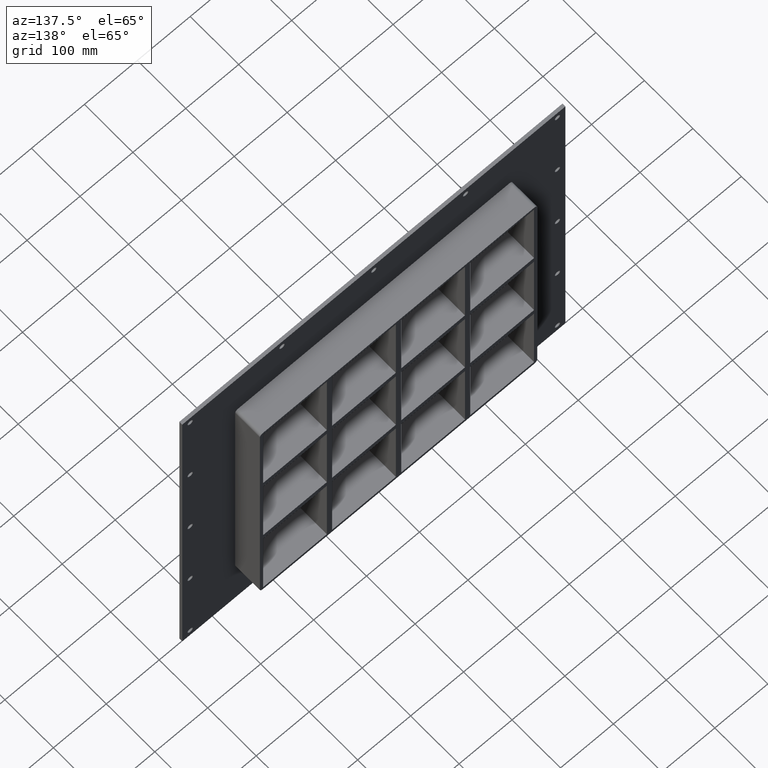
[diagram: clean part render]
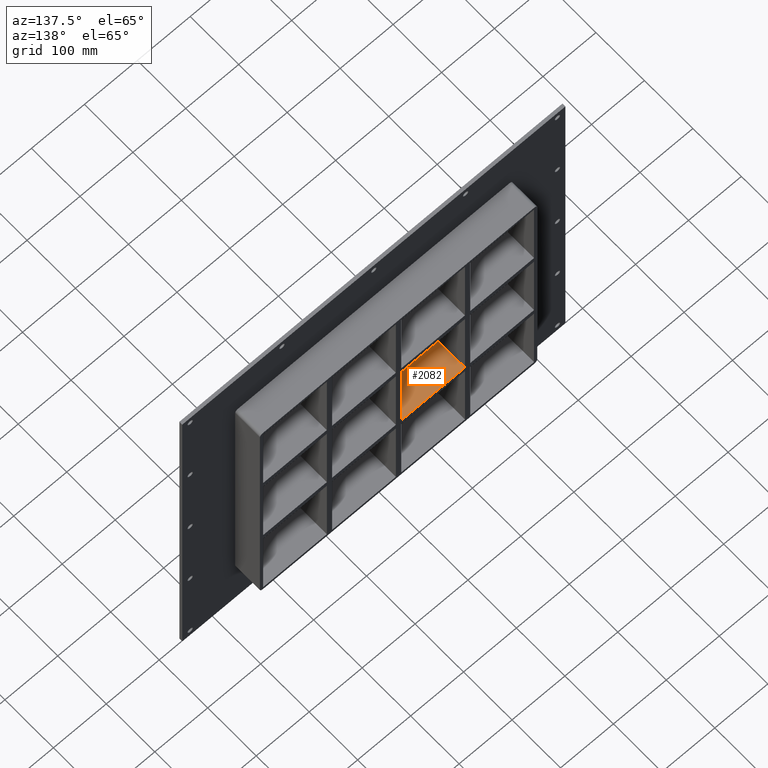
[diagram: same view with one face highlighted and labeled with its STEP entity id]
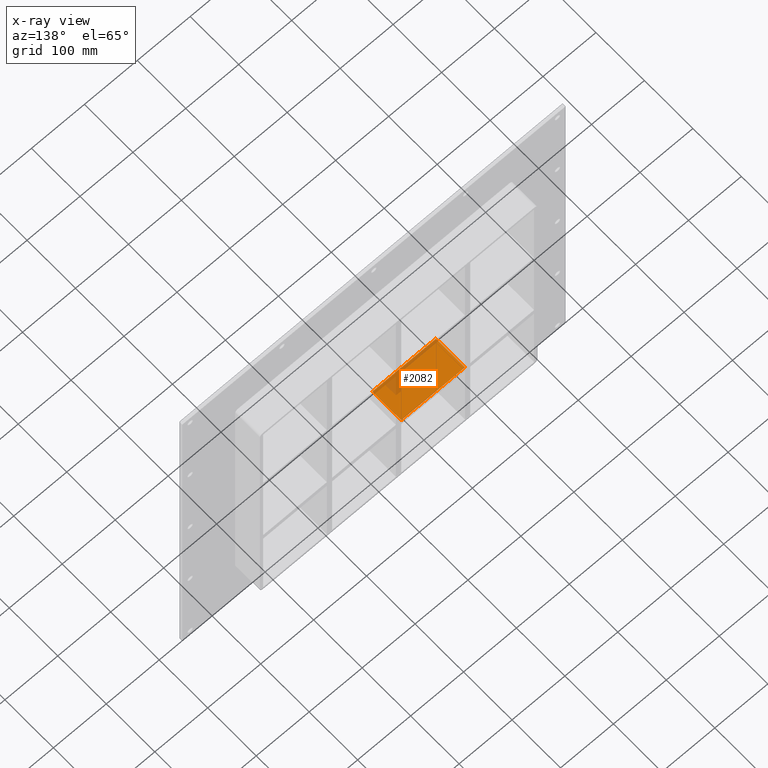
[diagram: x-ray of the same camera — body ghosted, the highlighted face saturated]
A machine part, auxiliary view. The second image highlights one B-rep face of the part: STEP entity #2082.
The next image is the same camera in x-ray: the body ghosted, the highlighted face saturated — about 15% of this face is hidden behind the body in this view.
In plain terms, the highlighted planar face has unit normal (0, 0, 1).
Its self-contained STEP definition (entity closure, byte-faithful):
#1316=CARTESIAN_POINT('',(-125.49999999999272,57.0,-79.749999999999943));
#1317=VERTEX_POINT('',#1316);
#1324=CARTESIAN_POINT('',(-5.000000000001339,57.0,-79.749999999999943));
#1325=VERTEX_POINT('',#1324);
#1326=CARTESIAN_POINT('',(-125.49999999999272,57.0,-79.749999999999943));
#1327=DIRECTION('',(1.0,0.0,0.0));
#1328=VECTOR('',#1327,120.49999999999139);
#1329=LINE('',#1326,#1328);
#1330=EDGE_CURVE('',#1317,#1325,#1329,.T.);
#1605=CARTESIAN_POINT('',(-5.000000000001339,-3.0,-79.749999999999943));
#1606=VERTEX_POINT('',#1605);
#1607=CARTESIAN_POINT('',(-5.000000000001345,-3.0,-79.749999999999943));
#1608=DIRECTION('',(0.0,1.0,0.0));
#1609=VECTOR('',#1608,60.0);
#1610=LINE('',#1607,#1609);
#1611=EDGE_CURVE('',#1606,#1325,#1610,.T.);
#1882=CARTESIAN_POINT('',(-125.49999999999272,-3.0,-79.749999999999943));
#1883=VERTEX_POINT('',#1882);
#1884=CARTESIAN_POINT('',(-125.49999999999272,-3.0,-79.749999999999943));
#1885=DIRECTION('',(1.0,0.0,0.0));
#1886=VECTOR('',#1885,120.49999999999139);
#1887=LINE('',#1884,#1886);
#1888=EDGE_CURVE('',#1883,#1606,#1887,.T.);
#2066=CARTESIAN_POINT('',(-255.99999999999969,-3.0,-79.749999999999943));
#2067=DIRECTION('',(0.0,0.0,1.0));
#2068=DIRECTION('',(1.0,0.0,0.0));
#2069=AXIS2_PLACEMENT_3D('',#2066,#2067,#2068);
#2070=PLANE('',#2069);
#2071=ORIENTED_EDGE('',*,*,#1611,.T.);
#2072=ORIENTED_EDGE('',*,*,#1330,.F.);
#2073=CARTESIAN_POINT('',(-125.49999999999272,-3.0,-79.749999999999943));
#2074=DIRECTION('',(0.0,1.0,0.0));
#2075=VECTOR('',#2074,60.0);
#2076=LINE('',#2073,#2075);
#2077=EDGE_CURVE('',#1883,#1317,#2076,.T.);
#2078=ORIENTED_EDGE('',*,*,#2077,.F.);
#2079=ORIENTED_EDGE('',*,*,#1888,.T.);
#2080=EDGE_LOOP('',(#2071,#2072,#2078,#2079));
#2081=FACE_OUTER_BOUND('',#2080,.T.);
#2082=ADVANCED_FACE('',(#2081),#2070,.T.);